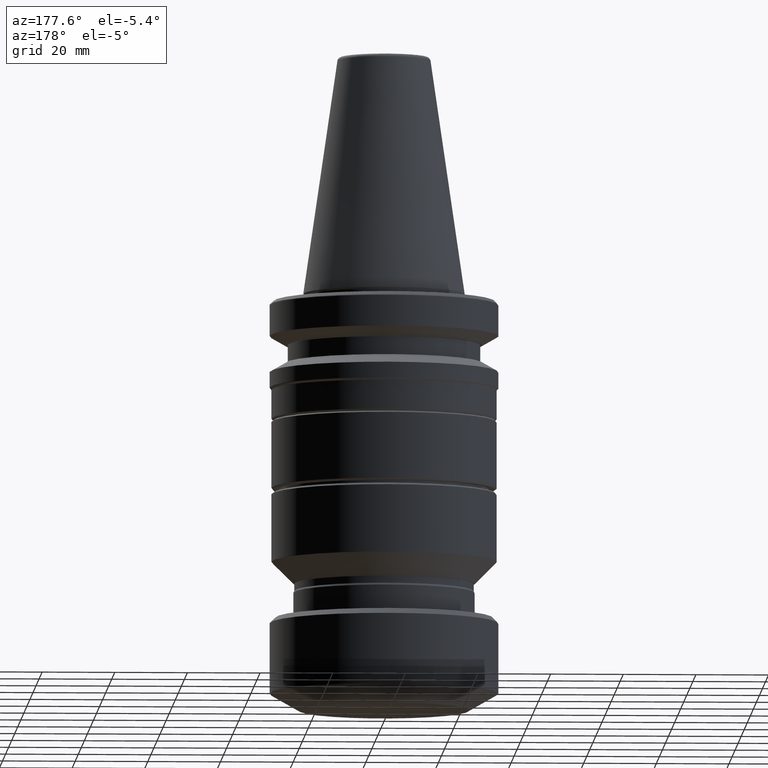
[diagram: clean part render]
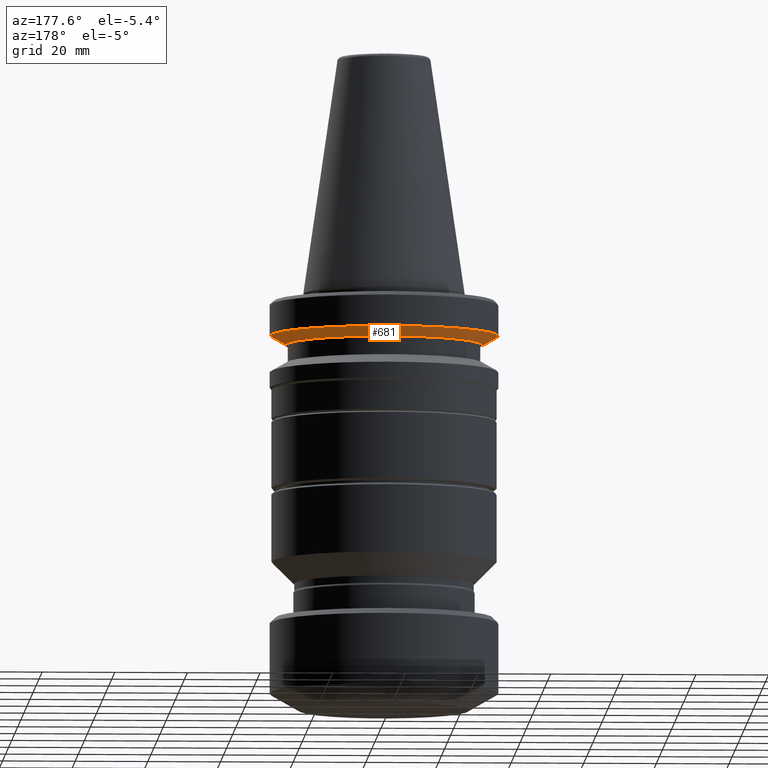
[diagram: same view with one face highlighted and labeled with its STEP entity id]
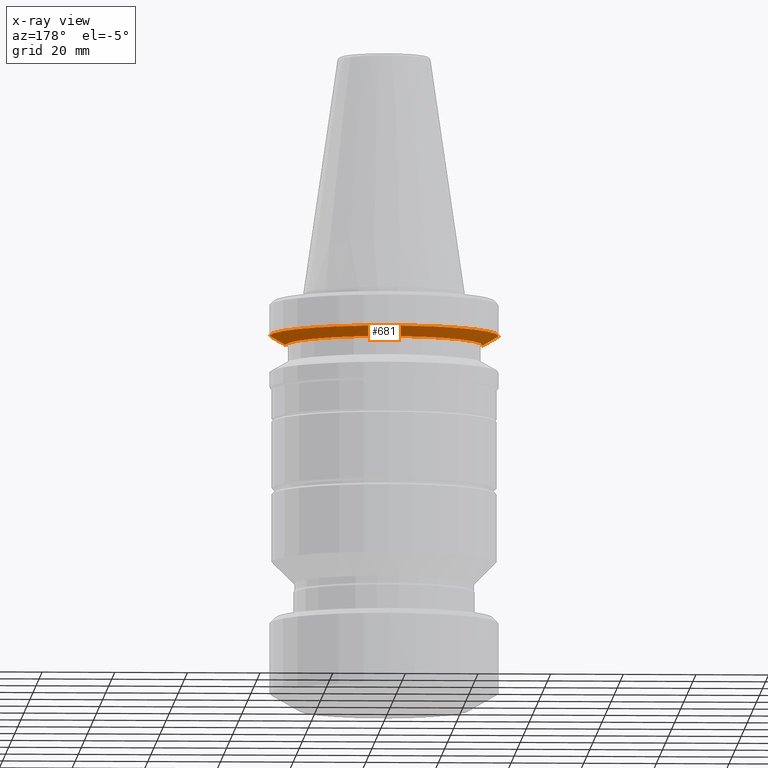
[diagram: x-ray of the same camera — body ghosted, the highlighted face saturated]
A machine part, auxiliary view. The second image highlights one B-rep face of the part: STEP entity #681.
The next image is the same camera in x-ray: the body ghosted, the highlighted face saturated — about 0% of this face is hidden behind the body in this view.
In plain terms, the highlighted conical surface has half-angle 60 deg.
Its self-contained STEP definition (entity closure, byte-faithful):
#33 = DIRECTION ( 'NONE',  ( 0.8660254037844393700, 0.0000000000000000000, 0.4999999999999985000 ) ) ;
#274 = ORIENTED_EDGE ( 'NONE', *, *, #469, .T. ) ;
#309 = DIRECTION ( 'NONE',  ( -0.8660254037844393700, 1.060575238724907800E-016, 0.4999999999999985000 ) ) ;
#420 = VERTEX_POINT ( 'NONE', #682 ) ;
#428 = DIRECTION ( 'NONE',  ( -0.0000000000000000000, -0.0000000000000000000, 1.000000000000000000 ) ) ;
#459 = CONICAL_SURFACE ( 'NONE', #773, 31.50000000000000000, 1.047197551196599400 ) ;
#469 = EDGE_CURVE ( 'NONE', #1581, #420, #826, .T. ) ;
#487 = ORIENTED_EDGE ( 'NONE', *, *, #1485, .F. ) ;
#524 = AXIS2_PLACEMENT_3D ( 'NONE', #809, #1888, #978 ) ;
#549 = FACE_OUTER_BOUND ( 'NONE', #1447, .T. ) ;
#681 = ADVANCED_FACE ( 'NONE', ( #549 ), #459, .T. ) ;
#682 = CARTESIAN_POINT ( 'NONE',  ( -31.50000000000000000, 3.857637417314162700E-015, -11.59985799368323700 ) ) ;
#730 = CARTESIAN_POINT ( 'NONE',  ( 0.0000000000000000000, 0.0000000000000000000, -11.59985799368323700 ) ) ;
#745 = CIRCLE ( 'NONE', #524, 31.50000000000000000 ) ;
#761 = VECTOR ( 'NONE', #309, 1000.000000000000100 ) ;
#773 = AXIS2_PLACEMENT_3D ( 'NONE', #730, #1490, #1267 ) ;
#809 = CARTESIAN_POINT ( 'NONE',  ( 0.0000000000000000000, 0.0000000000000000000, -11.59985799368323700 ) ) ;
#826 = LINE ( 'NONE', #1234, #761 ) ;
#978 = DIRECTION ( 'NONE',  ( 1.000000000000000000, 0.0000000000000000000, 0.0000000000000000000 ) ) ;
#983 = AXIS2_PLACEMENT_3D ( 'NONE', #1344, #428, #1501 ) ;
#1035 = CARTESIAN_POINT ( 'NONE',  ( 31.50000000000000000, 0.0000000000000000000, -11.59985799368323700 ) ) ;
#1214 = CIRCLE ( 'NONE', #983, 27.16962701892216000 ) ;
#1234 = CARTESIAN_POINT ( 'NONE',  ( -31.50000000000000000, 3.857637417314162700E-015, -11.59985799368323700 ) ) ;
#1267 = DIRECTION ( 'NONE',  ( 1.000000000000000000, 0.0000000000000000000, 0.0000000000000000000 ) ) ;
#1344 = CARTESIAN_POINT ( 'NONE',  ( 0.0000000000000000000, 0.0000000000000000000, -14.10000000000000100 ) ) ;
#1374 = EDGE_CURVE ( 'NONE', #1878, #1581, #1214, .T. ) ;
#1390 = VECTOR ( 'NONE', #33, 1000.000000000000100 ) ;
#1418 = ORIENTED_EDGE ( 'NONE', *, *, #1374, .T. ) ;
#1447 = EDGE_LOOP ( 'NONE', ( #1418, #274, #487, #1522 ) ) ;
#1485 = EDGE_CURVE ( 'NONE', #1756, #420, #745, .T. ) ;
#1490 = DIRECTION ( 'NONE',  ( -0.0000000000000000000, -0.0000000000000000000, 1.000000000000000000 ) ) ;
#1500 = CARTESIAN_POINT ( 'NONE',  ( 31.50000000000000000, 0.0000000000000000000, -11.59985799368323700 ) ) ;
#1501 = DIRECTION ( 'NONE',  ( 1.000000000000000000, 0.0000000000000000000, 0.0000000000000000000 ) ) ;
#1522 = ORIENTED_EDGE ( 'NONE', *, *, #1806, .F. ) ;
#1581 = VERTEX_POINT ( 'NONE', #1789 ) ;
#1713 = LINE ( 'NONE', #1500, #1390 ) ;
#1756 = VERTEX_POINT ( 'NONE', #1035 ) ;
#1789 = CARTESIAN_POINT ( 'NONE',  ( -27.16962701892216000, 3.592478546794604700E-015, -14.10000000000000100 ) ) ;
#1806 = EDGE_CURVE ( 'NONE', #1878, #1756, #1713, .T. ) ;
#1860 = CARTESIAN_POINT ( 'NONE',  ( 27.16962701892216000, 0.0000000000000000000, -14.10000000000000100 ) ) ;
#1878 = VERTEX_POINT ( 'NONE', #1860 ) ;
#1888 = DIRECTION ( 'NONE',  ( -0.0000000000000000000, -0.0000000000000000000, 1.000000000000000000 ) ) ;